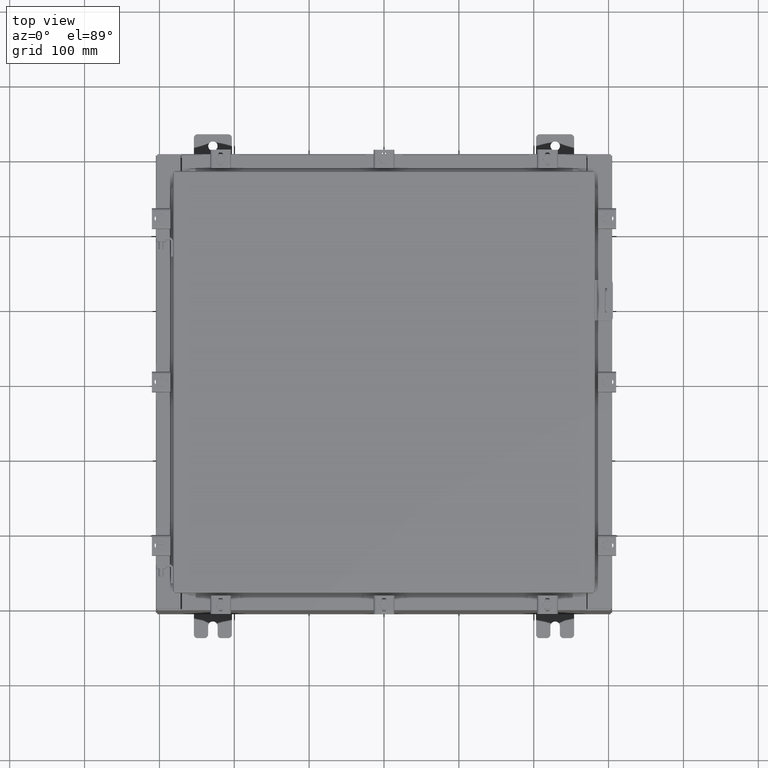
[diagram: clean part render]
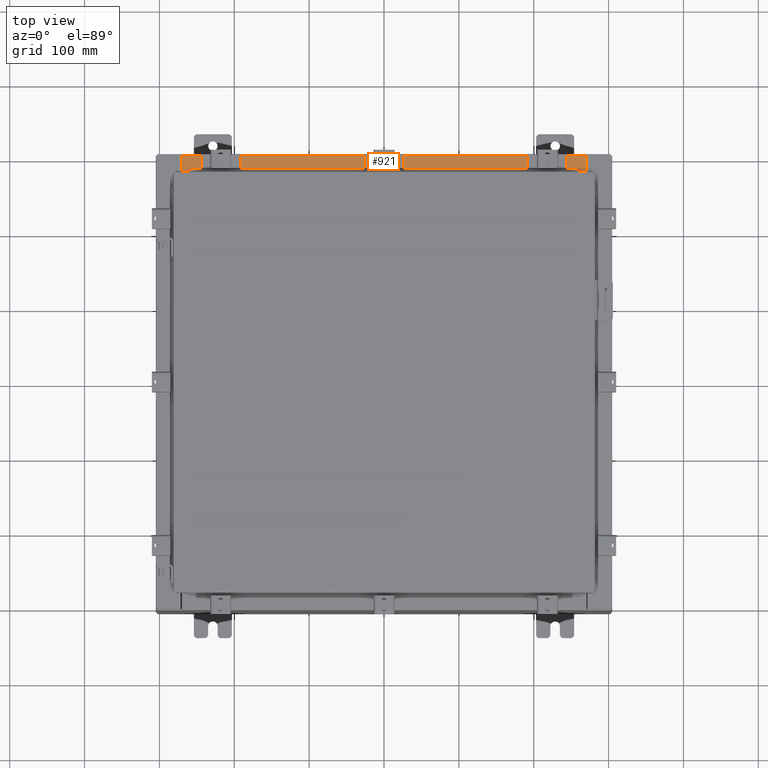
[diagram: same view with one face highlighted and labeled with its STEP entity id]
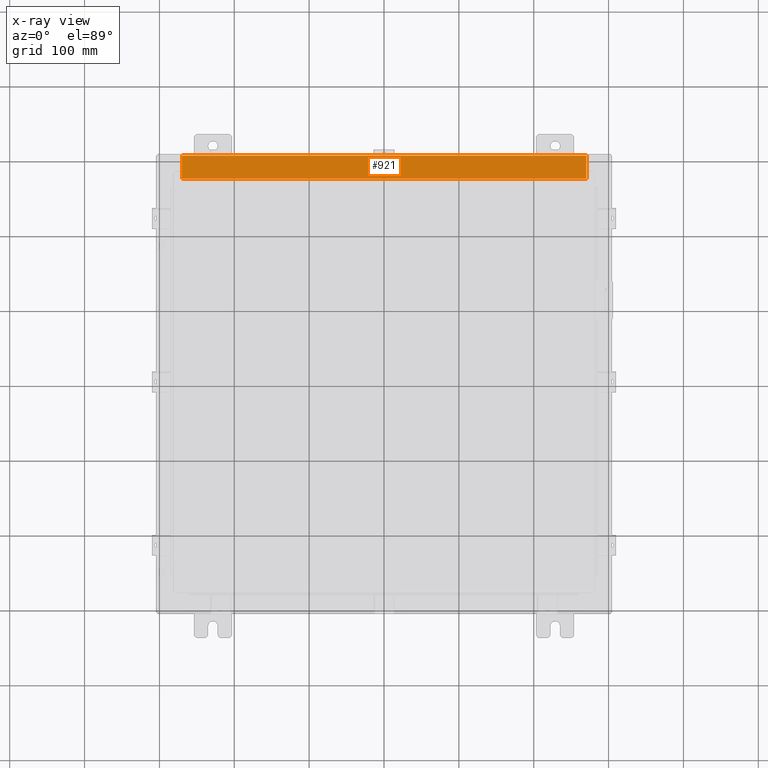
[diagram: x-ray of the same camera — body ghosted, the highlighted face saturated]
A machine part, top view. The second image highlights one B-rep face of the part: STEP entity #921.
The next image is the same camera in x-ray: the body ghosted, the highlighted face saturated — about 0% of this face is hidden behind the body in this view.
In plain terms, the highlighted planar face has unit normal (0, 0, 1).
Its self-contained STEP definition (entity closure, byte-faithful):
#921 = ADVANCED_FACE ( 'NONE', ( #13347 ), #7589, .T. ) ;
#1303 = EDGE_CURVE ( 'NONE', #21406, #2777, #17163, .T. ) ;
#1401 = CARTESIAN_POINT ( 'NONE',  ( -10.63720000000000200, -1.287299999999998100, 6.000000000000004400 ) ) ;
#2200 = CARTESIAN_POINT ( 'NONE',  ( 10.63720000000000200, -1.300299999999999800, 6.000000000000006200 ) ) ;
#2777 = VERTEX_POINT ( 'NONE', #1401 ) ;
#3112 = ORIENTED_EDGE ( 'NONE', *, *, #4136, .F. ) ;
#3371 = VECTOR ( 'NONE', #22220, 39.37007874015748100 ) ;
#3529 = ORIENTED_EDGE ( 'NONE', *, *, #9893, .T. ) ;
#3765 = DIRECTION ( 'NONE',  ( -1.000000000000000000, 0.0000000000000000000, 0.0000000000000000000 ) ) ;
#4136 = EDGE_CURVE ( 'NONE', #9136, #21406, #15972, .T. ) ;
#4146 = CARTESIAN_POINT ( 'NONE',  ( -3.422455537835030400E-018, 1.610972251716582100E-014, 6.000000000000001800 ) ) ;
#4593 = CARTESIAN_POINT ( 'NONE',  ( 10.63720000000000200, -1.287299999999998800, 6.000000000000006200 ) ) ;
#5934 = DIRECTION ( 'NONE',  ( 0.0000000000000000000, -1.000000000000000000, 2.674785894579892700E-015 ) ) ;
#6980 = VECTOR ( 'NONE', #20536, 39.37007874015748100 ) ;
#7178 = CARTESIAN_POINT ( 'NONE',  ( -10.63720000000000200, -0.08770000000000026400, 6.000000000000001800 ) ) ;
#7589 = PLANE ( 'NONE',  #7956 ) ;
#7956 = AXIS2_PLACEMENT_3D ( 'NONE', #4146, #16320, #5934 ) ;
#8362 = CARTESIAN_POINT ( 'NONE',  ( -10.63720000000000200, -0.07469999999999973900, 6.000000000000001800 ) ) ;
#9136 = VERTEX_POINT ( 'NONE', #11734 ) ;
#9195 = DIRECTION ( 'NONE',  ( -0.0000000000000000000, -1.000000000000000000, 3.566381192773190000E-015 ) ) ;
#9893 = EDGE_CURVE ( 'NONE', #9136, #22458, #15661, .T. ) ;
#11347 = VECTOR ( 'NONE', #9195, 39.37007874015748100 ) ;
#11734 = CARTESIAN_POINT ( 'NONE',  ( 10.63720000000000400, -0.08770000000000002800, 6.000000000000001800 ) ) ;
#11799 = EDGE_CURVE ( 'NONE', #2777, #22458, #17261, .T. ) ;
#13347 = FACE_OUTER_BOUND ( 'NONE', #20297, .T. ) ;
#13996 = ORIENTED_EDGE ( 'NONE', *, *, #11799, .F. ) ;
#15661 = LINE ( 'NONE', #20761, #6980 ) ;
#15910 = CARTESIAN_POINT ( 'NONE',  ( 10.63720000000000400, -1.287299999999998800, 6.000000000000003600 ) ) ;
#15972 = LINE ( 'NONE', #2200, #11347 ) ;
#16320 = DIRECTION ( 'NONE',  ( 0.0000000000000000000, 2.674785894579892700E-015, 1.000000000000000000 ) ) ;
#17163 = LINE ( 'NONE', #15910, #21019 ) ;
#17261 = LINE ( 'NONE', #8362, #3371 ) ;
#20297 = EDGE_LOOP ( 'NONE', ( #13996, #21026, #3112, #3529 ) ) ;
#20536 = DIRECTION ( 'NONE',  ( -1.000000000000000000, 0.0000000000000000000, 0.0000000000000000000 ) ) ;
#20761 = CARTESIAN_POINT ( 'NONE',  ( -3.422455537835030400E-018, -0.08770000000000026400, 6.000000000000001800 ) ) ;
#21019 = VECTOR ( 'NONE', #3765, 39.37007874015748100 ) ;
#21026 = ORIENTED_EDGE ( 'NONE', *, *, #1303, .F. ) ;
#21406 = VERTEX_POINT ( 'NONE', #4593 ) ;
#22220 = DIRECTION ( 'NONE',  ( -0.0000000000000000000, 1.000000000000000000, -2.674785894579892700E-015 ) ) ;
#22458 = VERTEX_POINT ( 'NONE', #7178 ) ;